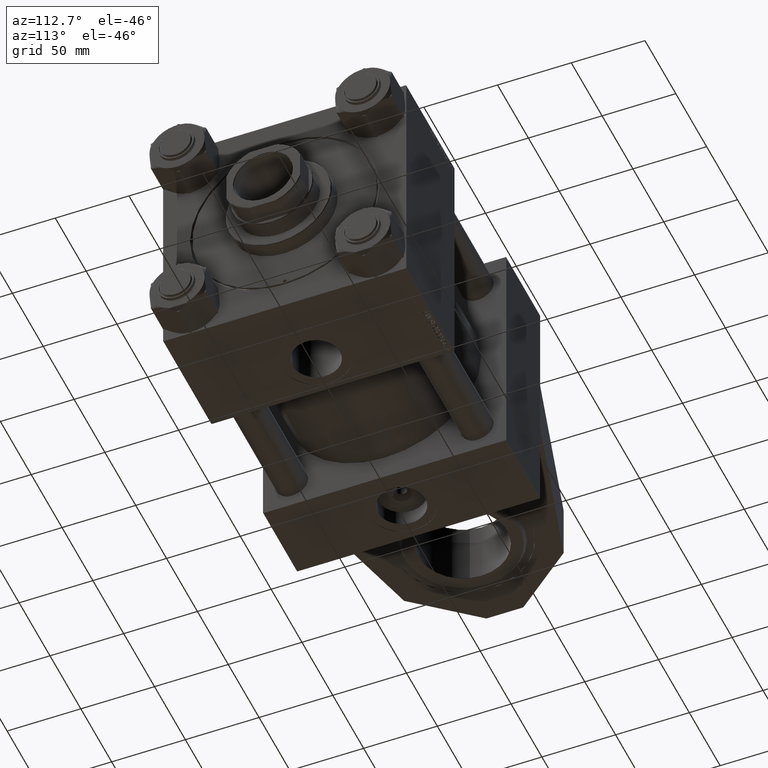
[diagram: clean part render]
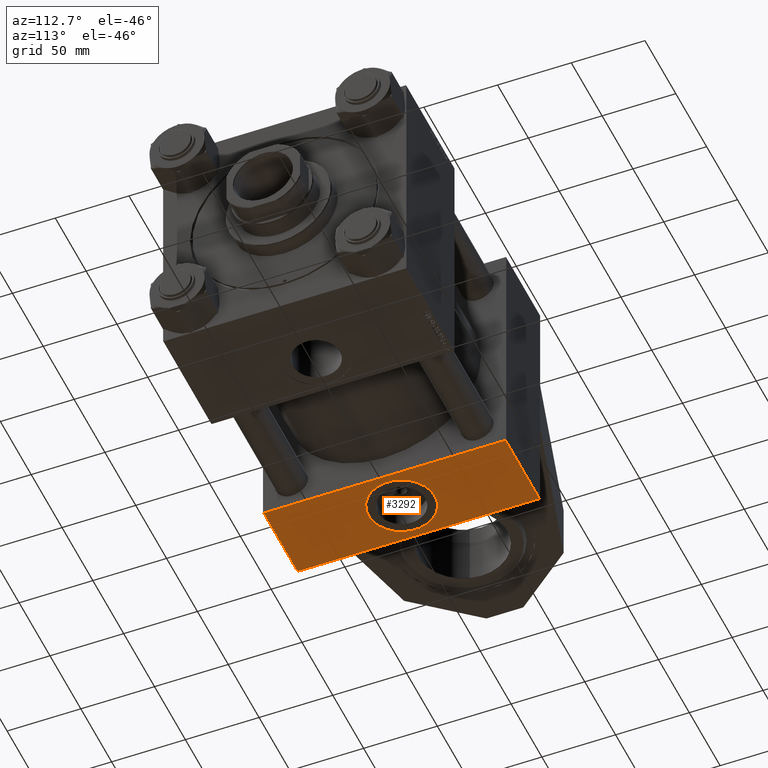
[diagram: same view with one face highlighted and labeled with its STEP entity id]
A machine part, auxiliary view. The second image highlights one B-rep face of the part: STEP entity #3292.
In plain terms, the highlighted planar face has unit normal (0, 0, 1).
Its self-contained STEP definition (entity closure, byte-faithful):
#530 = VECTOR ( 'NONE', #26330, 1000.000000000000000 ) ;
#1173 = AXIS2_PLACEMENT_3D ( 'NONE', #35896, #12790, #20000 ) ;
#3292 = ADVANCED_FACE ( 'NONE', ( #8692, #39765 ), #35406, .F. ) ;
#4425 = CARTESIAN_POINT ( 'NONE',  ( 27.50000000000000000, -82.49999999999998579, 1.387778780781445360E-14 ) ) ;
#7547 = EDGE_CURVE ( 'NONE', #9561, #46377, #41251, .T. ) ;
#8139 = AXIS2_PLACEMENT_3D ( 'NONE', #26576, #42252, #36070 ) ;
#8692 = FACE_BOUND ( 'NONE', #18971, .T. ) ;
#8746 = CIRCLE ( 'NONE', #21119, 22.50000000000000711 ) ;
#9561 = VERTEX_POINT ( 'NONE', #43919 ) ;
#11424 = VERTEX_POINT ( 'NONE', #46932 ) ;
#12790 = DIRECTION ( 'NONE',  ( 0.000000000000000000, 1.000000000000000000, -1.682156097916903588E-16 ) ) ;
#14684 = CARTESIAN_POINT ( 'NONE',  ( 55.00000000000000000, -82.50000000000000000, -81.99999999999998579 ) ) ;
#17935 = EDGE_CURVE ( 'NONE', #36495, #46377, #29096, .T. ) ;
#17960 = CIRCLE ( 'NONE', #8139, 22.50000000000000711 ) ;
#18971 = EDGE_LOOP ( 'NONE', ( #46746, #36489 ) ) ;
#20000 = DIRECTION ( 'NONE',  ( 0.000000000000000000, 1.682156097916903588E-16, 1.000000000000000000 ) ) ;
#21119 = AXIS2_PLACEMENT_3D ( 'NONE', #4425, #27004, #23921 ) ;
#22746 = EDGE_CURVE ( 'NONE', #44701, #9561, #24466, .T. ) ;
#23921 = DIRECTION ( 'NONE',  ( 0.000000000000000000, 0.000000000000000000, -1.000000000000000000 ) ) ;
#24466 = LINE ( 'NONE', #37291, #35327 ) ;
#25149 = ORIENTED_EDGE ( 'NONE', *, *, #22746, .T. ) ;
#26330 = DIRECTION ( 'NONE',  ( 1.000000000000000000, 0.000000000000000000, 0.000000000000000000 ) ) ;
#26576 = CARTESIAN_POINT ( 'NONE',  ( 27.50000000000000000, -82.49999999999998579, 1.387778780781445360E-14 ) ) ;
#27004 = DIRECTION ( 'NONE',  ( 0.000000000000000000, -1.000000000000000000, -8.673617379884036705E-17 ) ) ;
#28081 = CARTESIAN_POINT ( 'NONE',  ( 55.00000000000000000, -82.49999999999997158, 82.00000000000001421 ) ) ;
#28849 = CARTESIAN_POINT ( 'NONE',  ( 55.00000000000000000, -82.49999999999997158, 82.50000000000001421 ) ) ;
#29096 = LINE ( 'NONE', #28849, #44992 ) ;
#32313 = EDGE_CURVE ( 'NONE', #11424, #36624, #8746, .T. ) ;
#32929 = DIRECTION ( 'NONE',  ( 0.000000000000000000, -1.682156097916903588E-16, -1.000000000000000000 ) ) ;
#35327 = VECTOR ( 'NONE', #32929, 1000.000000000000000 ) ;
#35406 = PLANE ( 'NONE',  #1173 ) ;
#35896 = CARTESIAN_POINT ( 'NONE',  ( 55.00000000000000000, -82.49999999999997158, 82.50000000000001421 ) ) ;
#36070 = DIRECTION ( 'NONE',  ( 0.000000000000000000, 0.000000000000000000, -1.000000000000000000 ) ) ;
#36489 = ORIENTED_EDGE ( 'NONE', *, *, #38668, .F. ) ;
#36495 = VERTEX_POINT ( 'NONE', #37244 ) ;
#36624 = VERTEX_POINT ( 'NONE', #42626 ) ;
#37244 = CARTESIAN_POINT ( 'NONE',  ( 55.00000000000000000, -82.49999999999997158, 82.00000000000001421 ) ) ;
#37291 = CARTESIAN_POINT ( 'NONE',  ( 0.000000000000000000, -82.49999999999997158, 82.50000000000001421 ) ) ;
#37387 = CARTESIAN_POINT ( 'NONE',  ( 55.00000000000000000, -82.50000000000000000, -81.99999999999998579 ) ) ;
#38668 = EDGE_CURVE ( 'NONE', #36624, #11424, #17960, .T. ) ;
#39007 = ORIENTED_EDGE ( 'NONE', *, *, #7547, .T. ) ;
#39403 = LINE ( 'NONE', #28081, #46040 ) ;
#39654 = CARTESIAN_POINT ( 'NONE',  ( 0.000000000000000000, -82.49999999999997158, 82.00000000000001421 ) ) ;
#39765 = FACE_OUTER_BOUND ( 'NONE', #43316, .T. ) ;
#41251 = LINE ( 'NONE', #37387, #530 ) ;
#42252 = DIRECTION ( 'NONE',  ( 0.000000000000000000, -1.000000000000000000, -8.673617379884036705E-17 ) ) ;
#42605 = ORIENTED_EDGE ( 'NONE', *, *, #17935, .F. ) ;
#42626 = CARTESIAN_POINT ( 'NONE',  ( 27.50000000000000355, -82.49999999999998579, 22.50000000000002132 ) ) ;
#43316 = EDGE_LOOP ( 'NONE', ( #25149, #39007, #42605, #47757 ) ) ;
#43753 = DIRECTION ( 'NONE',  ( -1.000000000000000000, 0.000000000000000000, 0.000000000000000000 ) ) ;
#43919 = CARTESIAN_POINT ( 'NONE',  ( 0.000000000000000000, -82.50000000000000000, -81.99999999999998579 ) ) ;
#44701 = VERTEX_POINT ( 'NONE', #39654 ) ;
#44992 = VECTOR ( 'NONE', #45022, 1000.000000000000000 ) ;
#45022 = DIRECTION ( 'NONE',  ( 0.000000000000000000, -1.682156097916903588E-16, -1.000000000000000000 ) ) ;
#46040 = VECTOR ( 'NONE', #43753, 1000.000000000000000 ) ;
#46377 = VERTEX_POINT ( 'NONE', #14684 ) ;
#46746 = ORIENTED_EDGE ( 'NONE', *, *, #32313, .F. ) ;
#46932 = CARTESIAN_POINT ( 'NONE',  ( 27.50000000000000000, -82.49999999999998579, -22.49999999999999289 ) ) ;
#47757 = ORIENTED_EDGE ( 'NONE', *, *, #48596, .T. ) ;
#48596 = EDGE_CURVE ( 'NONE', #36495, #44701, #39403, .T. ) ;